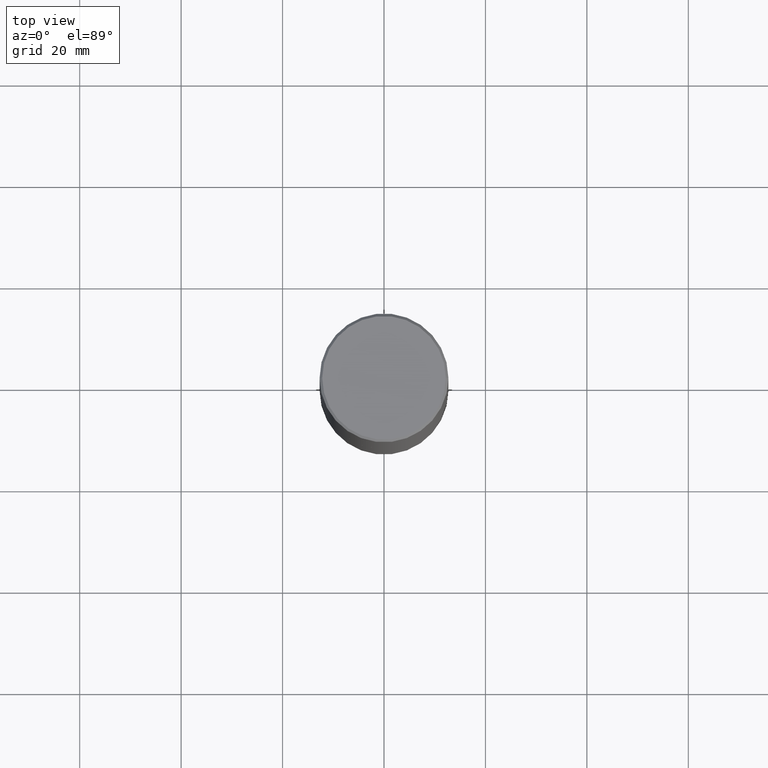
[diagram: clean part render]
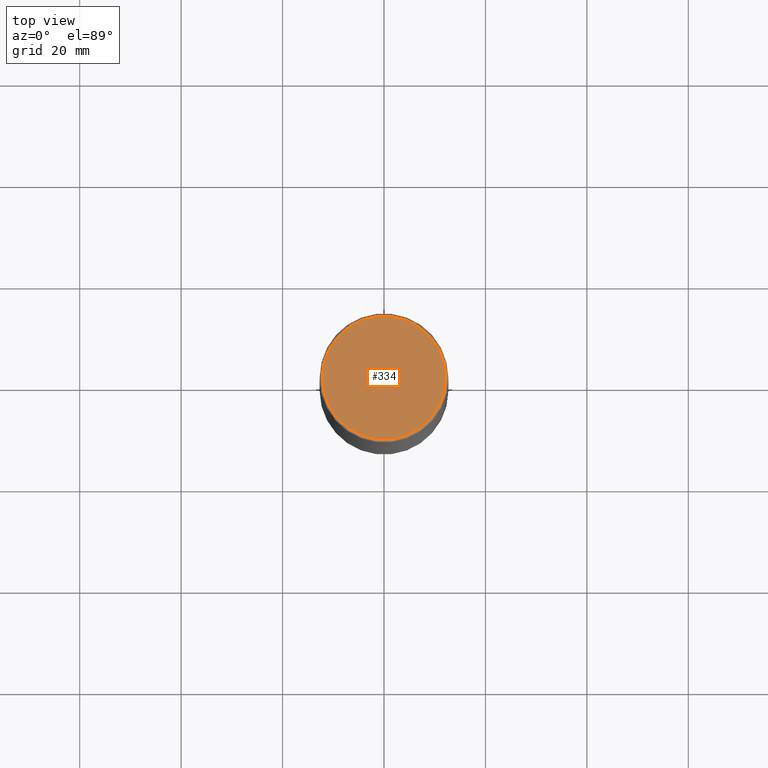
[diagram: same view with one face highlighted and labeled with its STEP entity id]
A machine part, top view. The second image highlights one B-rep face of the part: STEP entity #334.
In plain terms, the highlighted planar face has unit normal (0, -0, -1).
Its self-contained STEP definition (entity closure, byte-faithful):
#20 = CARTESIAN_POINT ( 'NONE',  ( -0.4799999999999995937, 3.386736898677836436E-15, 1.280553747027767124E-17 ) ) ;
#25 = ORIENTED_EDGE ( 'NONE', *, *, #322, .T. ) ;
#55 = EDGE_CURVE ( 'NONE', #345, #304, #282, .T. ) ;
#57 = DIRECTION ( 'NONE',  ( 2.438088387897960049E-29, -3.491481338843145188E-15, -1.000000000000000000 ) ) ;
#67 = CIRCLE ( 'NONE', #73, 0.4799999999999995937 ) ;
#73 = AXIS2_PLACEMENT_3D ( 'NONE', #319, #126, #186 ) ;
#82 = CARTESIAN_POINT ( 'NONE',  ( 3.351822085289404787E-15, 0.4799999999999995937, -1.669508273909557867E-15 ) ) ;
#87 = DIRECTION ( 'NONE',  ( -2.445468806185136597E-29, 3.491481338843145583E-15, 1.000000000000000000 ) ) ;
#126 = DIRECTION ( 'NONE',  ( -2.445468806185136597E-29, 3.491481338843145583E-15, 1.000000000000000000 ) ) ;
#162 = ORIENTED_EDGE ( 'NONE', *, *, #55, .T. ) ;
#176 = AXIS2_PLACEMENT_3D ( 'NONE', #82, #57, #216 ) ;
#179 = CARTESIAN_POINT ( 'NONE',  ( 0.4799999999999995937, -3.396558832296480127E-15, 1.280553747032483033E-17 ) ) ;
#186 = DIRECTION ( 'NONE',  ( 1.000000000000000000, -6.982962677686266711E-15, 4.876036955247133327E-29 ) ) ;
#189 = FACE_OUTER_BOUND ( 'NONE', #246, .T. ) ;
#216 = DIRECTION ( 'NONE',  ( -1.000000000000000000, 6.982962677686265922E-15, -4.876176775795935793E-29 ) ) ;
#246 = EDGE_LOOP ( 'NONE', ( #25, #162 ) ) ;
#255 = DIRECTION ( 'NONE',  ( 1.000000000000000000, -6.982962677686266711E-15, 4.876036955247133327E-29 ) ) ;
#282 = CIRCLE ( 'NONE', #327, 0.4799999999999995937 ) ;
#295 = PLANE ( 'NONE',  #176 ) ;
#304 = VERTEX_POINT ( 'NONE', #20 ) ;
#319 = CARTESIAN_POINT ( 'NONE',  ( -3.131554243005659264E-46, 4.471029511141341874E-32, 1.280553747030123384E-17 ) ) ;
#322 = EDGE_CURVE ( 'NONE', #304, #345, #67, .T. ) ;
#327 = AXIS2_PLACEMENT_3D ( 'NONE', #330, #87, #255 ) ;
#330 = CARTESIAN_POINT ( 'NONE',  ( -3.131554243005659264E-46, 4.471029511141341874E-32, 1.280553747030123384E-17 ) ) ;
#334 = ADVANCED_FACE ( 'NONE', ( #189 ), #295, .F. ) ;
#345 = VERTEX_POINT ( 'NONE', #179 ) ;